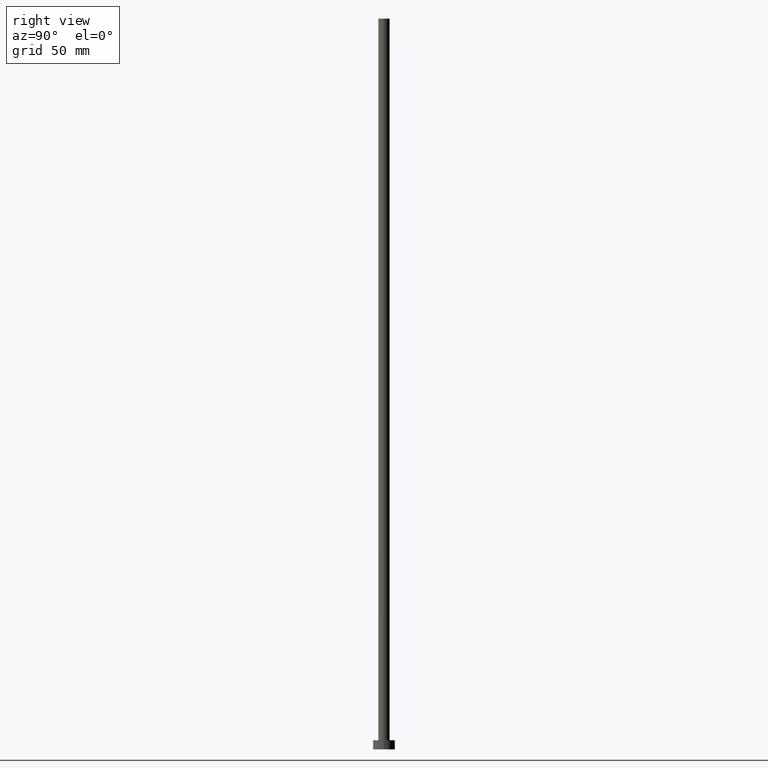
[diagram: clean part render]
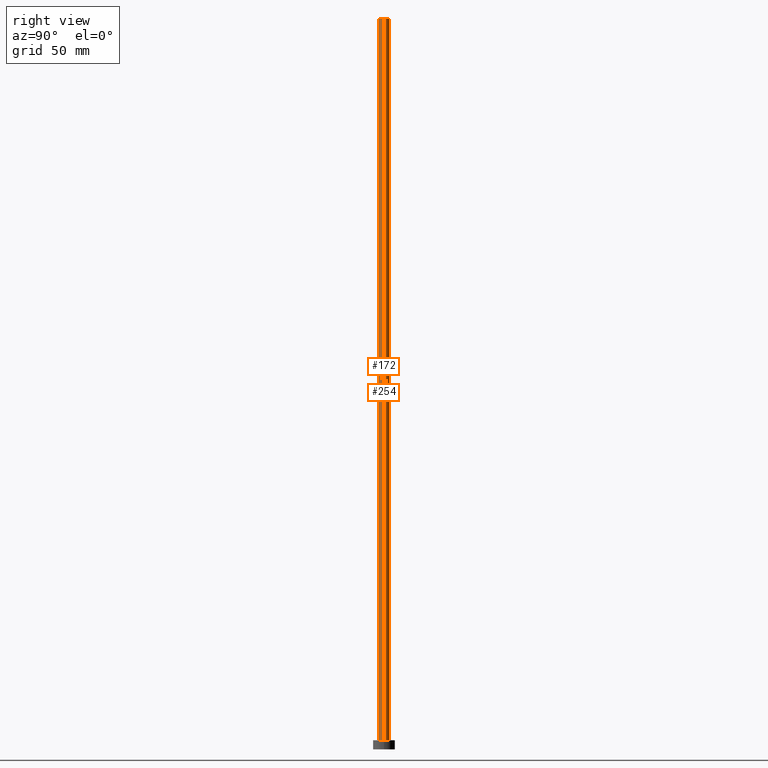
[diagram: same view with one multi-face feature highlighted, each face labeled with its STEP entity id]
A machine part, right view. The highlighted faces form ONE feature: a constant-radius fillet chain: 2 tangent blend faces with common blend radius 3.1 mm. The faces share edges in the B-rep.
Their STEP definitions:
[1] entity #172 (Cylinder):
#3 = ORIENTED_EDGE ( 'NONE', *, *, #145, .T. ) ;
#8 = CARTESIAN_POINT ( 'NONE',  ( 3.100000000000000089, 3.796405077356793932E-16, 400.0000000000000000 ) ) ;
#12 = AXIS2_PLACEMENT_3D ( 'NONE', #14, #163, #226 ) ;
#14 = CARTESIAN_POINT ( 'NONE',  ( 0.000000000000000000, 0.000000000000000000, 400.0000000000000000 ) ) ;
#23 = LINE ( 'NONE', #202, #85 ) ;
#24 = VERTEX_POINT ( 'NONE', #229 ) ;
#43 = CARTESIAN_POINT ( 'NONE',  ( 0.000000000000000000, 0.000000000000000000, 5.000000000000000000 ) ) ;
#44 = LINE ( 'NONE', #201, #81 ) ;
#63 = AXIS2_PLACEMENT_3D ( 'NONE', #252, #129, #168 ) ;
#69 = CYLINDRICAL_SURFACE ( 'NONE', #63, 3.100000000000000089 ) ;
#77 = VERTEX_POINT ( 'NONE', #8 ) ;
#81 = VECTOR ( 'NONE', #99, 1000.000000000000000 ) ;
#85 = VECTOR ( 'NONE', #100, 1000.000000000000000 ) ;
#86 = FACE_OUTER_BOUND ( 'NONE', #115, .T. ) ;
#99 = DIRECTION ( 'NONE',  ( -0.000000000000000000, -0.000000000000000000, -1.000000000000000000 ) ) ;
#100 = DIRECTION ( 'NONE',  ( -0.000000000000000000, -0.000000000000000000, -1.000000000000000000 ) ) ;
#110 = VERTEX_POINT ( 'NONE', #142 ) ;
#112 = AXIS2_PLACEMENT_3D ( 'NONE', #43, #125, #126 ) ;
#115 = EDGE_LOOP ( 'NONE', ( #250, #139, #178, #3 ) ) ;
#120 = EDGE_CURVE ( 'NONE', #212, #77, #198, .T. ) ;
#125 = DIRECTION ( 'NONE',  ( 0.000000000000000000, 0.000000000000000000, 1.000000000000000000 ) ) ;
#126 = DIRECTION ( 'NONE',  ( 1.000000000000000000, 0.000000000000000000, 0.000000000000000000 ) ) ;
#129 = DIRECTION ( 'NONE',  ( -0.000000000000000000, -0.000000000000000000, -1.000000000000000000 ) ) ;
#138 = EDGE_CURVE ( 'NONE', #77, #110, #44, .T. ) ;
#139 = ORIENTED_EDGE ( 'NONE', *, *, #120, .F. ) ;
#142 = CARTESIAN_POINT ( 'NONE',  ( 3.100000000000000089, 3.796405077356793932E-16, 5.000000000000000000 ) ) ;
#145 = EDGE_CURVE ( 'NONE', #24, #110, #234, .T. ) ;
#147 = EDGE_CURVE ( 'NONE', #212, #24, #23, .T. ) ;
#163 = DIRECTION ( 'NONE',  ( 0.000000000000000000, 0.000000000000000000, 1.000000000000000000 ) ) ;
#168 = DIRECTION ( 'NONE',  ( -1.000000000000000000, 0.000000000000000000, 0.000000000000000000 ) ) ;
#172 = ADVANCED_FACE ( 'NONE', ( #86 ), #69, .T. ) ;
#178 = ORIENTED_EDGE ( 'NONE', *, *, #147, .T. ) ;
#198 = CIRCLE ( 'NONE', #12, 3.100000000000000089 ) ;
#201 = CARTESIAN_POINT ( 'NONE',  ( 3.100000000000000089, 3.796405077356793932E-16, 400.0000000000000000 ) ) ;
#202 = CARTESIAN_POINT ( 'NONE',  ( -3.100000000000000089, 0.000000000000000000, 400.0000000000000000 ) ) ;
#212 = VERTEX_POINT ( 'NONE', #235 ) ;
#226 = DIRECTION ( 'NONE',  ( 1.000000000000000000, 0.000000000000000000, 0.000000000000000000 ) ) ;
#229 = CARTESIAN_POINT ( 'NONE',  ( -3.100000000000000089, 0.000000000000000000, 5.000000000000000000 ) ) ;
#234 = CIRCLE ( 'NONE', #112, 3.100000000000000089 ) ;
#235 = CARTESIAN_POINT ( 'NONE',  ( -3.100000000000000089, 0.000000000000000000, 400.0000000000000000 ) ) ;
#250 = ORIENTED_EDGE ( 'NONE', *, *, #138, .F. ) ;
#252 = CARTESIAN_POINT ( 'NONE',  ( 0.000000000000000000, 0.000000000000000000, 400.0000000000000000 ) ) ;
[2] entity #254 (Cylinder):
#8 = CARTESIAN_POINT ( 'NONE',  ( 3.100000000000000089, 3.796405077356793932E-16, 400.0000000000000000 ) ) ;
#9 = DIRECTION ( 'NONE',  ( 0.000000000000000000, 0.000000000000000000, 1.000000000000000000 ) ) ;
#23 = LINE ( 'NONE', #202, #85 ) ;
#24 = VERTEX_POINT ( 'NONE', #229 ) ;
#27 = DIRECTION ( 'NONE',  ( -1.000000000000000000, 0.000000000000000000, 0.000000000000000000 ) ) ;
#37 = ORIENTED_EDGE ( 'NONE', *, *, #72, .T. ) ;
#44 = LINE ( 'NONE', #201, #81 ) ;
#46 = EDGE_LOOP ( 'NONE', ( #176, #57, #37, #62 ) ) ;
#51 = AXIS2_PLACEMENT_3D ( 'NONE', #107, #106, #232 ) ;
#52 = CIRCLE ( 'NONE', #70, 3.100000000000000089 ) ;
#57 = ORIENTED_EDGE ( 'NONE', *, *, #138, .T. ) ;
#62 = ORIENTED_EDGE ( 'NONE', *, *, #147, .F. ) ;
#70 = AXIS2_PLACEMENT_3D ( 'NONE', #246, #9, #146 ) ;
#72 = EDGE_CURVE ( 'NONE', #110, #24, #52, .T. ) ;
#77 = VERTEX_POINT ( 'NONE', #8 ) ;
#81 = VECTOR ( 'NONE', #99, 1000.000000000000000 ) ;
#85 = VECTOR ( 'NONE', #100, 1000.000000000000000 ) ;
#99 = DIRECTION ( 'NONE',  ( -0.000000000000000000, -0.000000000000000000, -1.000000000000000000 ) ) ;
#100 = DIRECTION ( 'NONE',  ( -0.000000000000000000, -0.000000000000000000, -1.000000000000000000 ) ) ;
#101 = CIRCLE ( 'NONE', #51, 3.100000000000000089 ) ;
#106 = DIRECTION ( 'NONE',  ( 0.000000000000000000, 0.000000000000000000, 1.000000000000000000 ) ) ;
#107 = CARTESIAN_POINT ( 'NONE',  ( 0.000000000000000000, 0.000000000000000000, 400.0000000000000000 ) ) ;
#110 = VERTEX_POINT ( 'NONE', #142 ) ;
#121 = AXIS2_PLACEMENT_3D ( 'NONE', #189, #206, #27 ) ;
#138 = EDGE_CURVE ( 'NONE', #77, #110, #44, .T. ) ;
#142 = CARTESIAN_POINT ( 'NONE',  ( 3.100000000000000089, 3.796405077356793932E-16, 5.000000000000000000 ) ) ;
#146 = DIRECTION ( 'NONE',  ( 1.000000000000000000, 0.000000000000000000, 0.000000000000000000 ) ) ;
#147 = EDGE_CURVE ( 'NONE', #212, #24, #23, .T. ) ;
#170 = FACE_OUTER_BOUND ( 'NONE', #46, .T. ) ;
#176 = ORIENTED_EDGE ( 'NONE', *, *, #199, .F. ) ;
#189 = CARTESIAN_POINT ( 'NONE',  ( 0.000000000000000000, 0.000000000000000000, 400.0000000000000000 ) ) ;
#199 = EDGE_CURVE ( 'NONE', #77, #212, #101, .T. ) ;
#201 = CARTESIAN_POINT ( 'NONE',  ( 3.100000000000000089, 3.796405077356793932E-16, 400.0000000000000000 ) ) ;
#202 = CARTESIAN_POINT ( 'NONE',  ( -3.100000000000000089, 0.000000000000000000, 400.0000000000000000 ) ) ;
#206 = DIRECTION ( 'NONE',  ( -0.000000000000000000, -0.000000000000000000, -1.000000000000000000 ) ) ;
#212 = VERTEX_POINT ( 'NONE', #235 ) ;
#229 = CARTESIAN_POINT ( 'NONE',  ( -3.100000000000000089, 0.000000000000000000, 5.000000000000000000 ) ) ;
#232 = DIRECTION ( 'NONE',  ( 1.000000000000000000, 0.000000000000000000, 0.000000000000000000 ) ) ;
#235 = CARTESIAN_POINT ( 'NONE',  ( -3.100000000000000089, 0.000000000000000000, 400.0000000000000000 ) ) ;
#246 = CARTESIAN_POINT ( 'NONE',  ( 0.000000000000000000, 0.000000000000000000, 5.000000000000000000 ) ) ;
#254 = ADVANCED_FACE ( 'NONE', ( #170 ), #255, .T. ) ;
#255 = CYLINDRICAL_SURFACE ( 'NONE', #121, 3.100000000000000089 ) ;